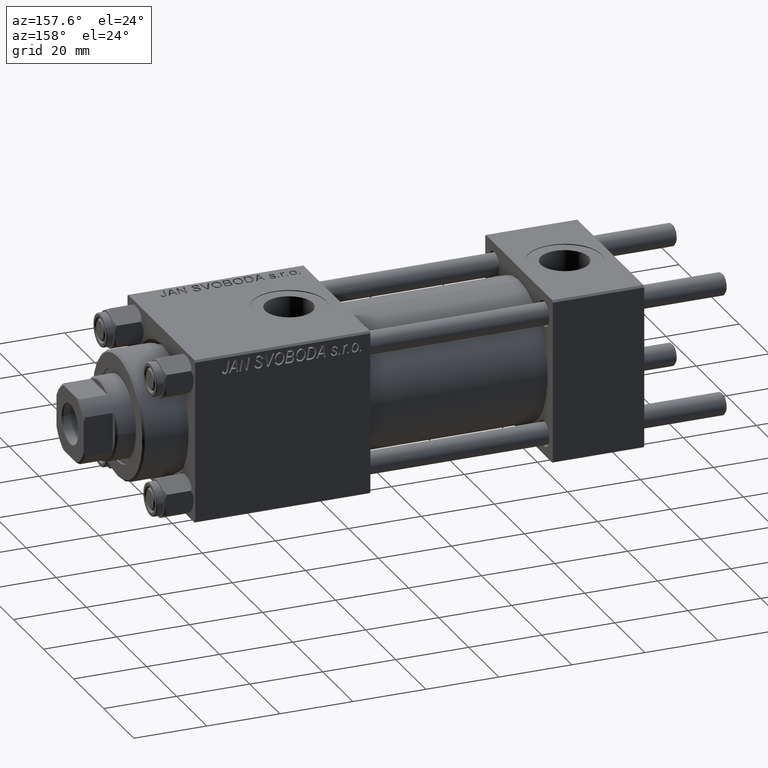
[diagram: clean part render]
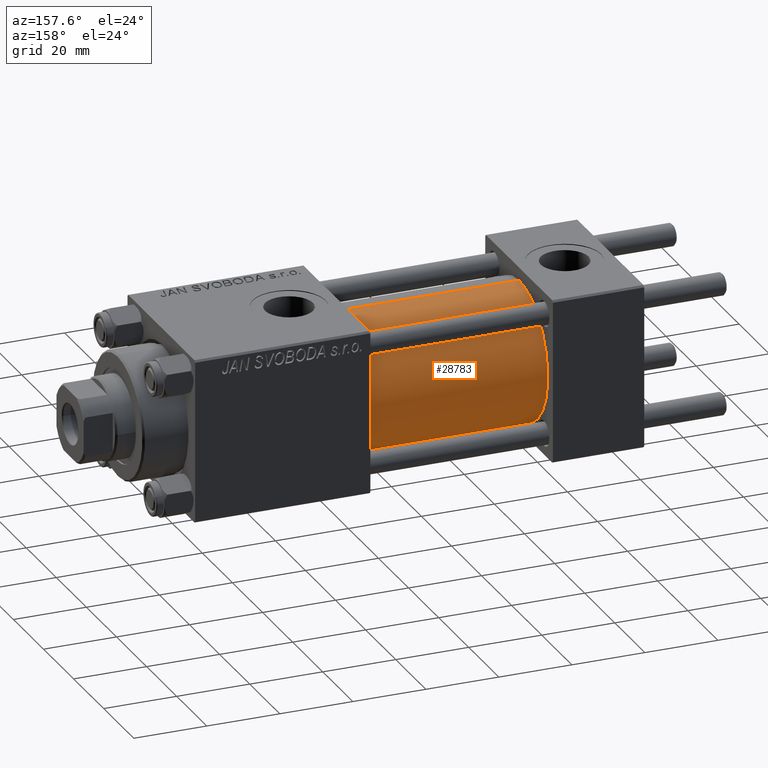
[diagram: same view with one face highlighted and labeled with its STEP entity id]
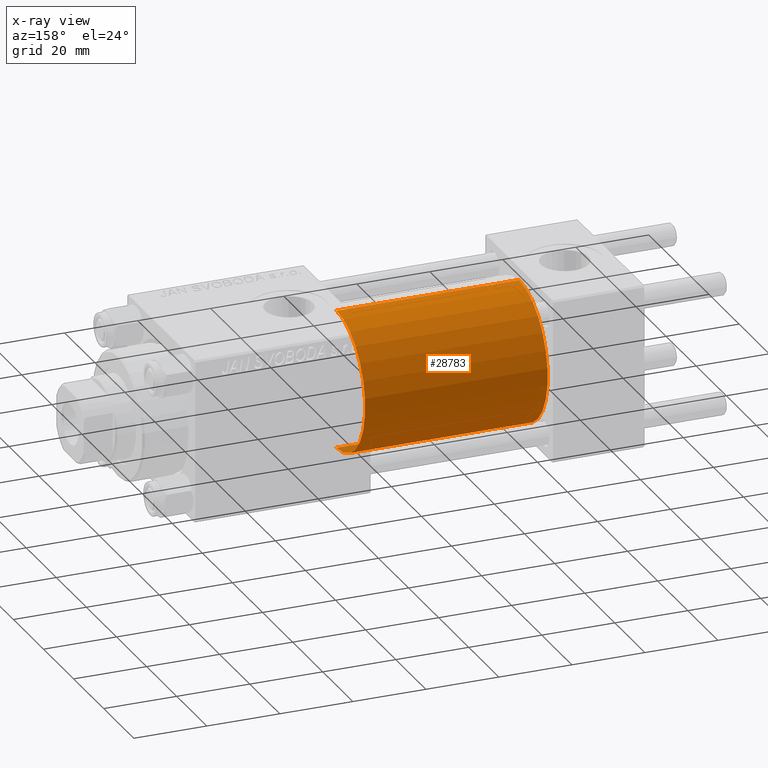
[diagram: x-ray of the same camera — body ghosted, the highlighted face saturated]
A machine part, auxiliary view. The second image highlights one B-rep face of the part: STEP entity #28783.
The next image is the same camera in x-ray: the body ghosted, the highlighted face saturated — about 0% of this face is hidden behind the body in this view.
In plain terms, the highlighted cylindrical surface (partial cylindrical patch) has radius 19 mm, axis along (-1, -0, -0).
Its self-contained STEP definition (entity closure, byte-faithful):
#308 = EDGE_CURVE ( 'NONE', #38926, #12951, #47647, .T. ) ;
#872 = ORIENTED_EDGE ( 'NONE', *, *, #22602, .T. ) ;
#2952 = CYLINDRICAL_SURFACE ( 'NONE', #17238, 19.00000000000000000 ) ;
#3735 = CARTESIAN_POINT ( 'NONE',  ( 75.00000000000001421, 0.000000000000000000, 0.000000000000000000 ) ) ;
#5399 = ORIENTED_EDGE ( 'NONE', *, *, #308, .F. ) ;
#6064 = CARTESIAN_POINT ( 'NONE',  ( 75.00000000000001421, 0.000000000000000000, 19.00000000000000000 ) ) ;
#10547 = CARTESIAN_POINT ( 'NONE',  ( 25.00000000000000000, 0.000000000000000000, 0.000000000000000000 ) ) ;
#11109 = FACE_OUTER_BOUND ( 'NONE', #19903, .T. ) ;
#11630 = AXIS2_PLACEMENT_3D ( 'NONE', #14398, #33264, #45854 ) ;
#11781 = DIRECTION ( 'NONE',  ( 1.000000000000000000, -0.000000000000000000, 0.000000000000000000 ) ) ;
#12951 = VERTEX_POINT ( 'NONE', #15720 ) ;
#13216 = VERTEX_POINT ( 'NONE', #35827 ) ;
#13729 = AXIS2_PLACEMENT_3D ( 'NONE', #10547, #11781, #39549 ) ;
#14398 = CARTESIAN_POINT ( 'NONE',  ( 75.00000000000001421, 0.000000000000000000, 0.000000000000000000 ) ) ;
#14475 = LINE ( 'NONE', #6064, #32554 ) ;
#15720 = CARTESIAN_POINT ( 'NONE',  ( 75.00000000000001421, 0.000000000000000000, 19.00000000000000000 ) ) ;
#17091 = VECTOR ( 'NONE', #44902, 1000.000000000000000 ) ;
#17238 = AXIS2_PLACEMENT_3D ( 'NONE', #3735, #18986, #27103 ) ;
#18986 = DIRECTION ( 'NONE',  ( -1.000000000000000000, -0.000000000000000000, -0.000000000000000000 ) ) ;
#19629 = CARTESIAN_POINT ( 'NONE',  ( 75.00000000000001421, 2.326828918379970970E-15, -19.00000000000000000 ) ) ;
#19903 = EDGE_LOOP ( 'NONE', ( #5399, #24809, #872, #34218 ) ) ;
#22602 = EDGE_CURVE ( 'NONE', #30739, #13216, #36311, .T. ) ;
#24809 = ORIENTED_EDGE ( 'NONE', *, *, #25729, .T. ) ;
#25729 = EDGE_CURVE ( 'NONE', #38926, #30739, #32833, .T. ) ;
#27103 = DIRECTION ( 'NONE',  ( 0.000000000000000000, 0.000000000000000000, 1.000000000000000000 ) ) ;
#28783 = ADVANCED_FACE ( 'NONE', ( #11109 ), #2952, .T. ) ;
#30739 = VERTEX_POINT ( 'NONE', #40675 ) ;
#32554 = VECTOR ( 'NONE', #49615, 1000.000000000000000 ) ;
#32833 = LINE ( 'NONE', #44109, #17091 ) ;
#33264 = DIRECTION ( 'NONE',  ( 1.000000000000000000, 0.000000000000000000, 0.000000000000000000 ) ) ;
#34218 = ORIENTED_EDGE ( 'NONE', *, *, #41206, .F. ) ;
#35827 = CARTESIAN_POINT ( 'NONE',  ( 25.00000000000000000, 0.000000000000000000, 19.00000000000000000 ) ) ;
#36311 = CIRCLE ( 'NONE', #13729, 19.00000000000000000 ) ;
#38926 = VERTEX_POINT ( 'NONE', #19629 ) ;
#39549 = DIRECTION ( 'NONE',  ( 0.000000000000000000, 0.000000000000000000, 1.000000000000000000 ) ) ;
#40675 = CARTESIAN_POINT ( 'NONE',  ( 25.00000000000000000, 2.326828918379970970E-15, -19.00000000000000000 ) ) ;
#41206 = EDGE_CURVE ( 'NONE', #12951, #13216, #14475, .T. ) ;
#44109 = CARTESIAN_POINT ( 'NONE',  ( 75.00000000000001421, 2.326828918379970970E-15, -19.00000000000000000 ) ) ;
#44902 = DIRECTION ( 'NONE',  ( -1.000000000000000000, -0.000000000000000000, -0.000000000000000000 ) ) ;
#45854 = DIRECTION ( 'NONE',  ( 0.000000000000000000, 0.000000000000000000, -1.000000000000000000 ) ) ;
#47647 = CIRCLE ( 'NONE', #11630, 19.00000000000000000 ) ;
#49615 = DIRECTION ( 'NONE',  ( -1.000000000000000000, -0.000000000000000000, -0.000000000000000000 ) ) ;